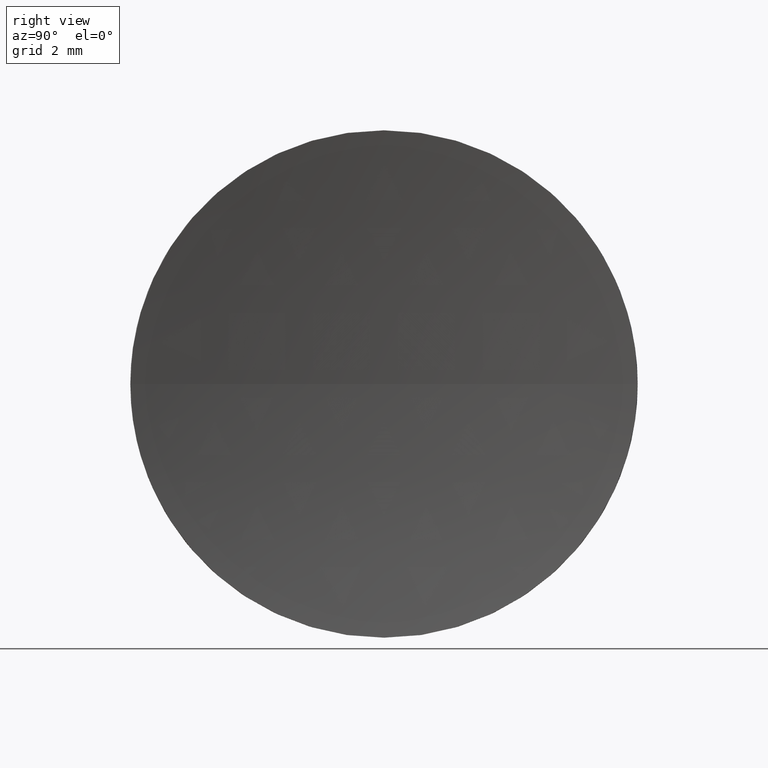
[diagram: clean part render]
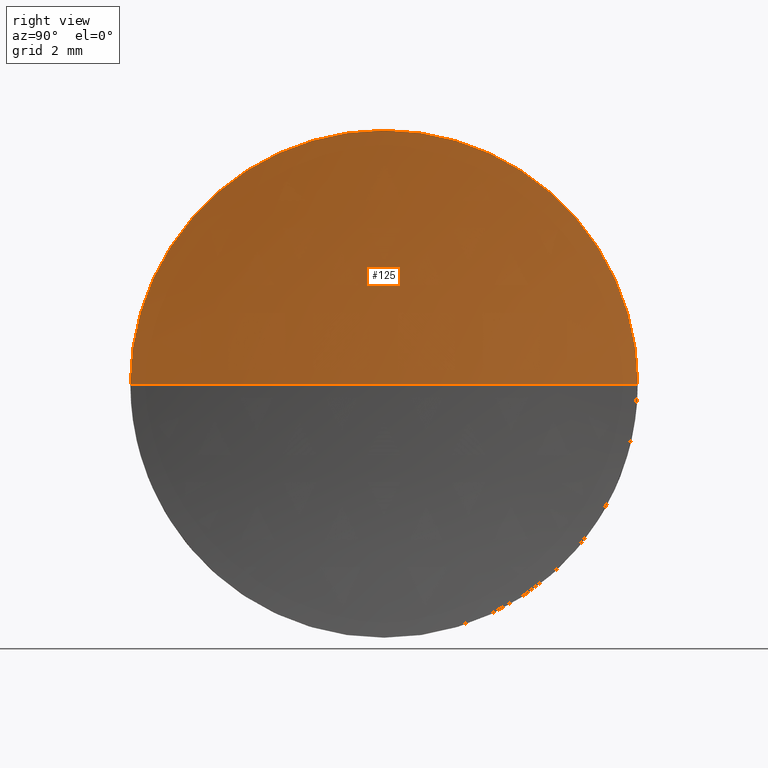
[diagram: same view with one face highlighted and labeled with its STEP entity id]
A machine part, right view. The second image highlights one B-rep face of the part: STEP entity #125.
In plain terms, the highlighted spherical surface has radius 40 mm.
Its self-contained STEP definition (entity closure, byte-faithful):
#11 = CARTESIAN_POINT ( 'NONE',  ( 61.03762619563895700, 34.68901056168621700, 6.250000000000004400 ) ) ;
#14 = DIRECTION ( 'NONE',  ( -1.000000000000000000, -0.0000000000000000000, -0.0000000000000000000 ) ) ;
#20 = EDGE_CURVE ( 'NONE', #47, #148, #161, .T. ) ;
#27 = AXIS2_PLACEMENT_3D ( 'NONE', #134, #44, #170 ) ;
#28 = ORIENTED_EDGE ( 'NONE', *, *, #77, .T. ) ;
#32 = CARTESIAN_POINT ( 'NONE',  ( 61.03762619563895700, 28.43901056168619600, -7.654042494670957600E-016 ) ) ;
#34 = VERTEX_POINT ( 'NONE', #127 ) ;
#35 = DIRECTION ( 'NONE',  ( 0.0000000000000000000, 0.0000000000000000000, 1.000000000000000000 ) ) ;
#44 = DIRECTION ( 'NONE',  ( 0.0000000000000000000, 1.224646799147353200E-016, -1.000000000000000000 ) ) ;
#45 = DIRECTION ( 'NONE',  ( 0.0000000000000000000, 1.000000000000000000, 0.0000000000000000000 ) ) ;
#47 = VERTEX_POINT ( 'NONE', #32 ) ;
#52 = FACE_OUTER_BOUND ( 'NONE', #159, .T. ) ;
#69 = ORIENTED_EDGE ( 'NONE', *, *, #20, .F. ) ;
#71 = ORIENTED_EDGE ( 'NONE', *, *, #90, .F. ) ;
#77 = EDGE_CURVE ( 'NONE', #47, #34, #120, .T. ) ;
#86 = DIRECTION ( 'NONE',  ( 0.0000000000000000000, 0.0000000000000000000, -1.000000000000000000 ) ) ;
#90 = EDGE_CURVE ( 'NONE', #148, #150, #158, .T. ) ;
#118 = CARTESIAN_POINT ( 'NONE',  ( 100.5463277688367200, 34.68901056168619600, 0.0000000000000000000 ) ) ;
#120 = CIRCLE ( 'NONE', #27, 40.00000000000000000 ) ;
#124 = AXIS2_PLACEMENT_3D ( 'NONE', #118, #35, #183 ) ;
#125 = ADVANCED_FACE ( 'NONE', ( #52 ), #152, .F. ) ;
#127 = CARTESIAN_POINT ( 'NONE',  ( 60.54632776883671900, 34.68901056168619600, 0.0000000000000000000 ) ) ;
#128 = CARTESIAN_POINT ( 'NONE',  ( 61.03762619563895700, 34.68901056168621700, 0.0000000000000000000 ) ) ;
#129 = AXIS2_PLACEMENT_3D ( 'NONE', #128, #151, #167 ) ;
#132 = AXIS2_PLACEMENT_3D ( 'NONE', #147, #14, #181 ) ;
#134 = CARTESIAN_POINT ( 'NONE',  ( 100.5463277688367200, 34.68901056168619600, 0.0000000000000000000 ) ) ;
#140 = CARTESIAN_POINT ( 'NONE',  ( 100.5463277688367200, 34.68901056168619600, 0.0000000000000000000 ) ) ;
#146 = AXIS2_PLACEMENT_3D ( 'NONE', #140, #86, #45 ) ;
#147 = CARTESIAN_POINT ( 'NONE',  ( 61.03762619563895700, 34.68901056168621700, 0.0000000000000000000 ) ) ;
#148 = VERTEX_POINT ( 'NONE', #11 ) ;
#150 = VERTEX_POINT ( 'NONE', #185 ) ;
#151 = DIRECTION ( 'NONE',  ( -1.000000000000000000, -0.0000000000000000000, -0.0000000000000000000 ) ) ;
#152 = SPHERICAL_SURFACE ( 'NONE', #146, 40.00000000000000000 ) ;
#158 = CIRCLE ( 'NONE', #129, 6.250000000000005300 ) ;
#159 = EDGE_LOOP ( 'NONE', ( #69, #28, #166, #71 ) ) ;
#161 = CIRCLE ( 'NONE', #132, 6.250000000000005300 ) ;
#166 = ORIENTED_EDGE ( 'NONE', *, *, #179, .F. ) ;
#167 = DIRECTION ( 'NONE',  ( 0.0000000000000000000, 0.0000000000000000000, 1.000000000000000000 ) ) ;
#170 = DIRECTION ( 'NONE',  ( 0.0000000000000000000, 1.000000000000000000, 1.224646799147353200E-016 ) ) ;
#177 = CIRCLE ( 'NONE', #124, 39.99999999999999300 ) ;
#179 = EDGE_CURVE ( 'NONE', #150, #34, #177, .T. ) ;
#181 = DIRECTION ( 'NONE',  ( 0.0000000000000000000, 0.0000000000000000000, 1.000000000000000000 ) ) ;
#183 = DIRECTION ( 'NONE',  ( 1.000000000000000000, 0.0000000000000000000, 0.0000000000000000000 ) ) ;
#185 = CARTESIAN_POINT ( 'NONE',  ( 61.03762619563895700, 40.93901056168622400, 0.0000000000000000000 ) ) ;